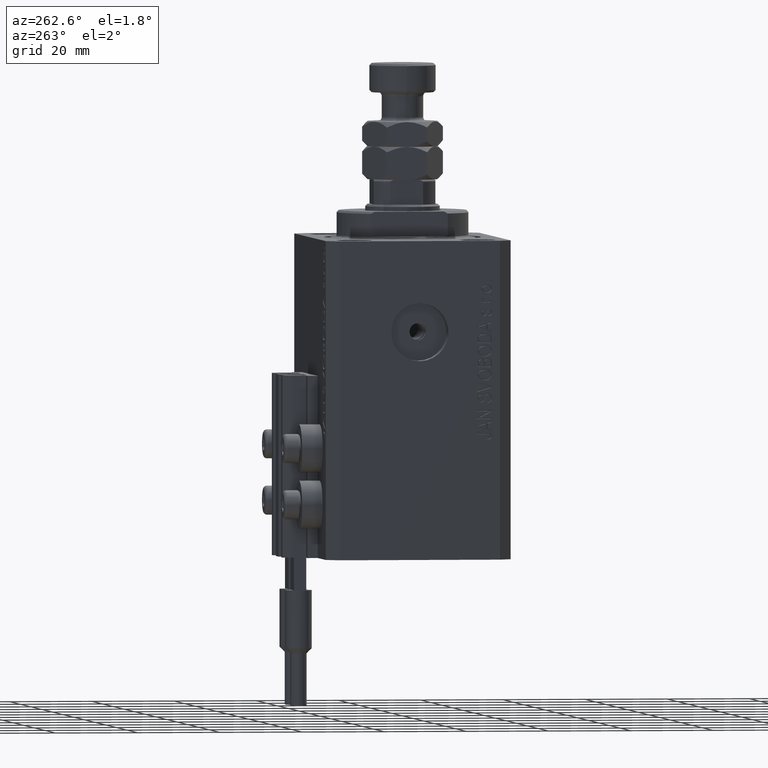
[diagram: clean part render]
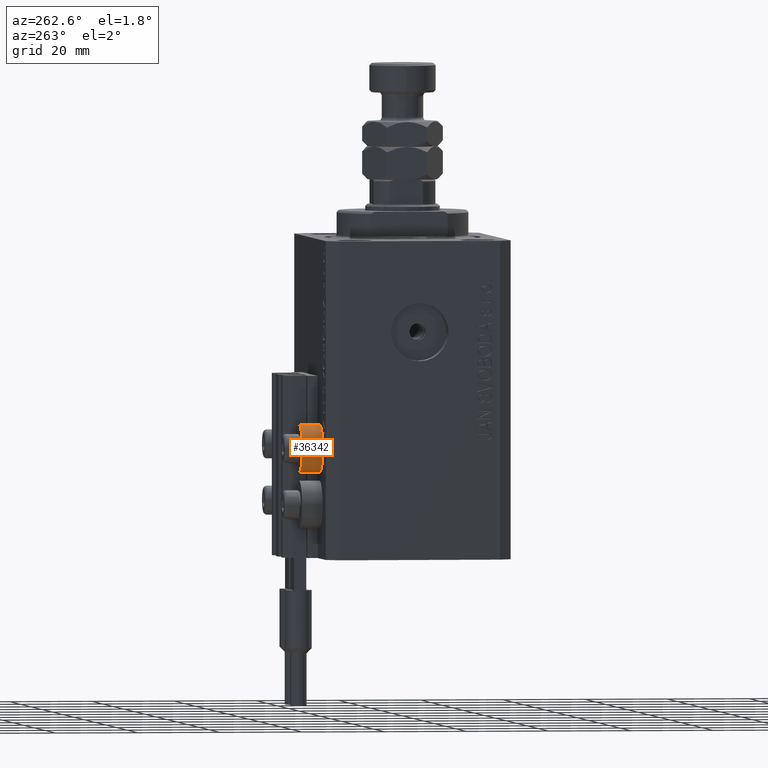
[diagram: same view with one face highlighted and labeled with its STEP entity id]
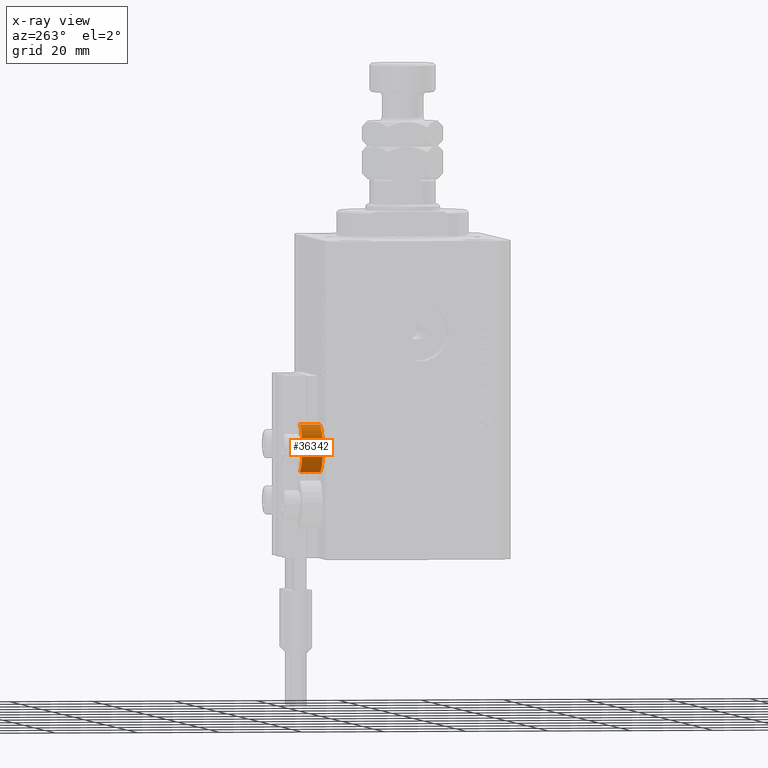
[diagram: x-ray of the same camera — body ghosted, the highlighted face saturated]
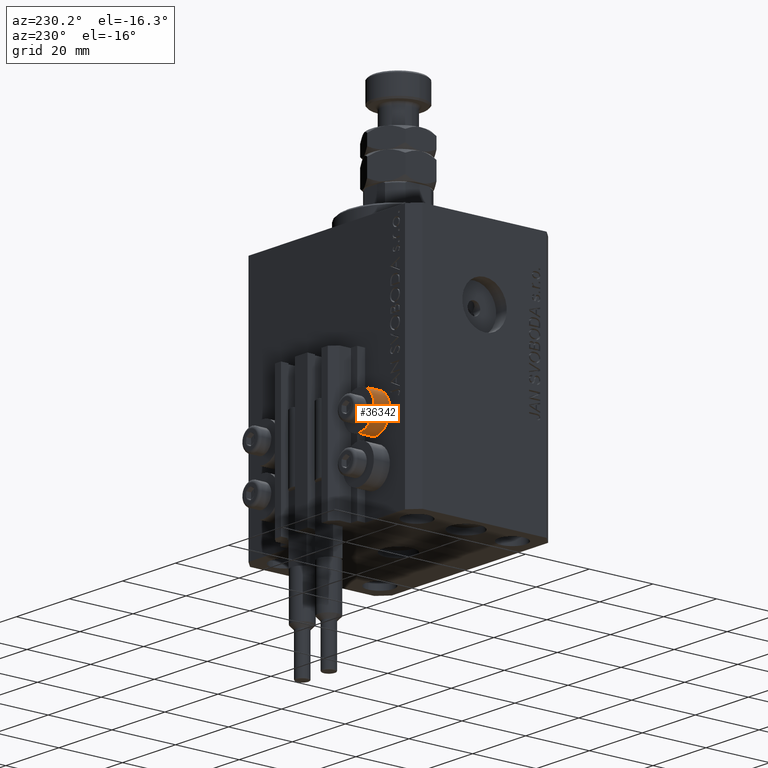
[diagram: same view with one face highlighted and labeled with its STEP entity id]
A machine part, auxiliary view. The second image highlights one B-rep face of the part: STEP entity #36342.
The next image is the same camera in x-ray: the body ghosted, the highlighted face saturated — about 0% of this face is hidden behind the body in this view.
A second angle (auxiliary view) of the same face is appended — the face is thin or edge-on in the first view.
In plain terms, the highlighted cylindrical surface (edge-blend (fillet) strip) has radius 5.8 mm, axis along (0, 1, 0).
Its self-contained STEP definition (entity closure, byte-faithful):
#196 = CARTESIAN_POINT ( 'NONE',  ( -18.00000000000000355, 27.49999999996051514, -56.20000000000000284 ) ) ;
#1070 = CARTESIAN_POINT ( 'NONE',  ( -18.00000000000000355, 27.49999999996051514, -56.20000000000000284 ) ) ;
#2447 = CIRCLE ( 'NONE', #10522, 5.799999999999999822 ) ;
#2733 = DIRECTION ( 'NONE',  ( 0.000000000000000000, 0.000000000000000000, 1.000000000000000000 ) ) ;
#4764 = EDGE_CURVE ( 'NONE', #39296, #23394, #4852, .T. ) ;
#4852 = LINE ( 'NONE', #31604, #37976 ) ;
#5166 = ORIENTED_EDGE ( 'NONE', *, *, #5312, .F. ) ;
#5312 = EDGE_CURVE ( 'NONE', #46561, #20423, #12301, .T. ) ;
#5765 = CIRCLE ( 'NONE', #41265, 5.799999999999999822 ) ;
#6772 = DIRECTION ( 'NONE',  ( -0.000000000000000000, 1.000000000000000000, -0.000000000000000000 ) ) ;
#10314 = CARTESIAN_POINT ( 'NONE',  ( -18.00000000000000355, 22.49999999999951328, -50.39999999999999858 ) ) ;
#10522 = AXIS2_PLACEMENT_3D ( 'NONE', #10314, #6772, #2733 ) ;
#11938 = DIRECTION ( 'NONE',  ( -0.000000000000000000, 1.000000000000000000, -0.000000000000000000 ) ) ;
#12301 = LINE ( 'NONE', #196, #33977 ) ;
#13690 = FACE_OUTER_BOUND ( 'NONE', #34269, .T. ) ;
#16870 = DIRECTION ( 'NONE',  ( 0.000000000000000000, 0.000000000000000000, 1.000000000000000000 ) ) ;
#19906 = ORIENTED_EDGE ( 'NONE', *, *, #4764, .T. ) ;
#20423 = VERTEX_POINT ( 'NONE', #1070 ) ;
#23394 = VERTEX_POINT ( 'NONE', #39247 ) ;
#23678 = CARTESIAN_POINT ( 'NONE',  ( -18.00000000000000355, 27.49999999996051514, -50.39999999999999858 ) ) ;
#25274 = CARTESIAN_POINT ( 'NONE',  ( -18.00000000000000355, 27.49999999996051514, -50.39999999999999858 ) ) ;
#28514 = ORIENTED_EDGE ( 'NONE', *, *, #42638, .F. ) ;
#30078 = ORIENTED_EDGE ( 'NONE', *, *, #38927, .T. ) ;
#31262 = DIRECTION ( 'NONE',  ( -0.000000000000000000, 1.000000000000000000, -0.000000000000000000 ) ) ;
#31604 = CARTESIAN_POINT ( 'NONE',  ( -18.00000000000000355, 27.49999999996051514, -44.60000000000000142 ) ) ;
#33977 = VECTOR ( 'NONE', #35518, 1000.000000000000000 ) ;
#34269 = EDGE_LOOP ( 'NONE', ( #5166, #30078, #19906, #28514 ) ) ;
#35518 = DIRECTION ( 'NONE',  ( -0.000000000000000000, 1.000000000000000000, -0.000000000000000000 ) ) ;
#36342 = ADVANCED_FACE ( 'NONE', ( #13690 ), #37403, .T. ) ;
#37403 = CYLINDRICAL_SURFACE ( 'NONE', #48440, 5.799999999999999822 ) ;
#37976 = VECTOR ( 'NONE', #11938, 1000.000000000000000 ) ;
#38927 = EDGE_CURVE ( 'NONE', #46561, #39296, #2447, .T. ) ;
#39247 = CARTESIAN_POINT ( 'NONE',  ( -18.00000000000000355, 27.49999999996051514, -44.60000000000000142 ) ) ;
#39296 = VERTEX_POINT ( 'NONE', #47879 ) ;
#40698 = DIRECTION ( 'NONE',  ( 0.000000000000000000, 0.000000000000000000, 1.000000000000000000 ) ) ;
#41265 = AXIS2_PLACEMENT_3D ( 'NONE', #23678, #31262, #16870 ) ;
#41974 = CARTESIAN_POINT ( 'NONE',  ( -18.00000000000000355, 22.49999999999951328, -56.20000000000000284 ) ) ;
#42638 = EDGE_CURVE ( 'NONE', #20423, #23394, #5765, .T. ) ;
#44992 = DIRECTION ( 'NONE',  ( -0.000000000000000000, 1.000000000000000000, -0.000000000000000000 ) ) ;
#46561 = VERTEX_POINT ( 'NONE', #41974 ) ;
#47879 = CARTESIAN_POINT ( 'NONE',  ( -18.00000000000000355, 22.49999999999951328, -44.60000000000000142 ) ) ;
#48440 = AXIS2_PLACEMENT_3D ( 'NONE', #25274, #44992, #40698 ) ;